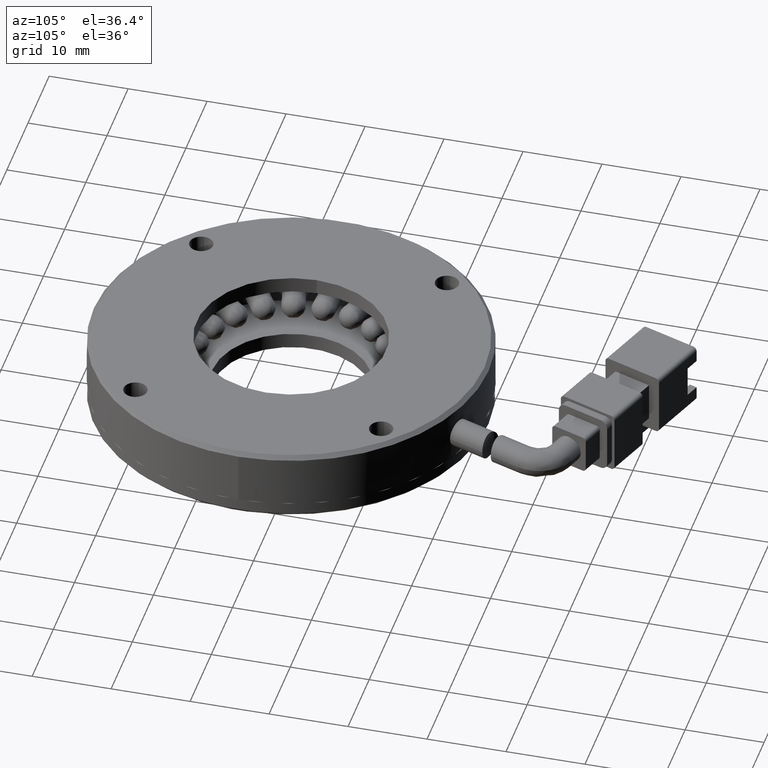
[diagram: clean part render]
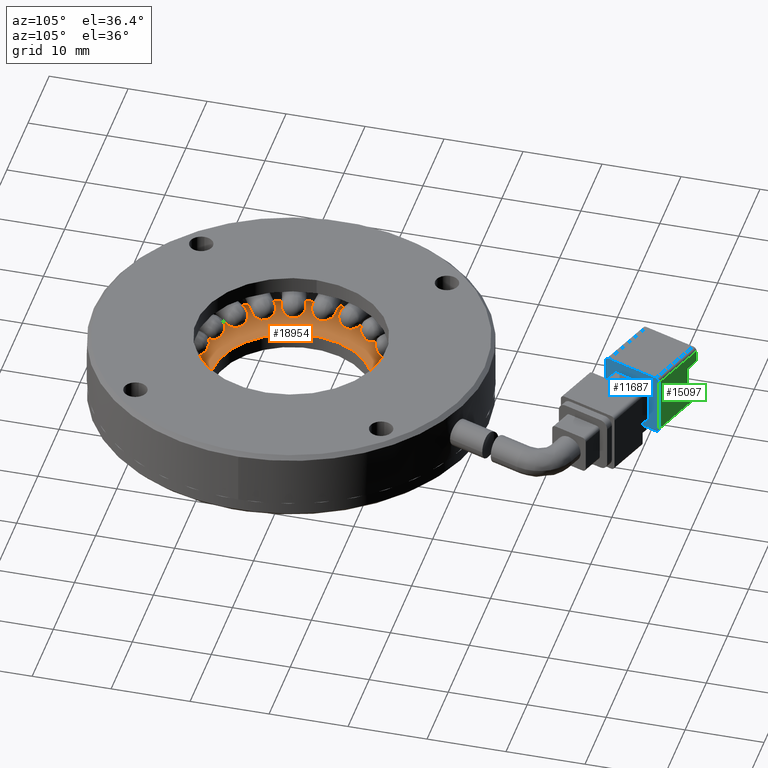
[diagram: same view with three faces highlighted in distinct colors, each labeled with its STEP entity id]
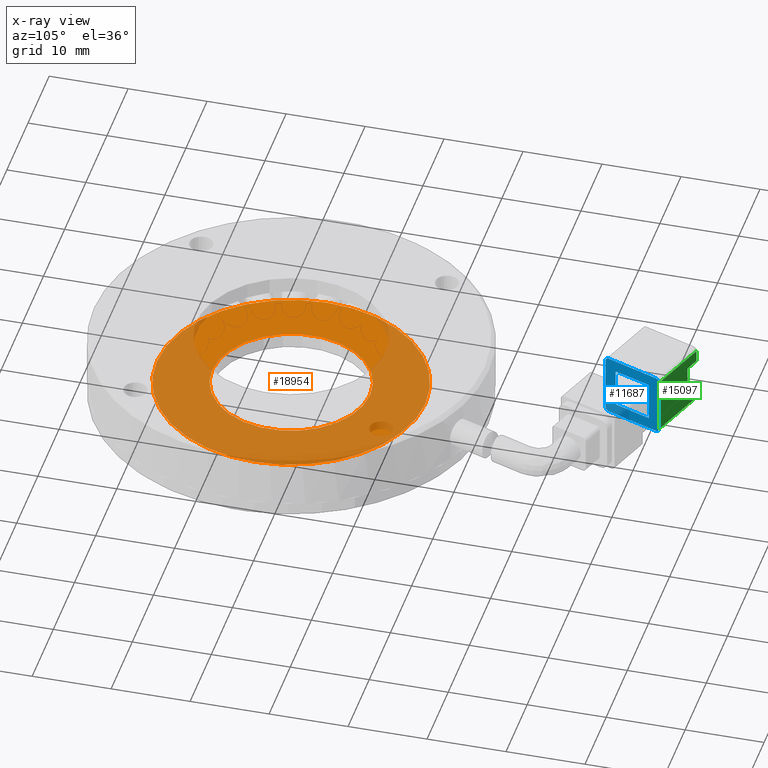
[diagram: x-ray of the same camera — body ghosted, the three highlighted faces saturated]
A machine part, auxiliary view with three faces highlighted in distinct colors.
The next image is the same camera in x-ray (body ghosted, the three faces saturated) — at least one of them is partly hidden behind the body in this view.
Their STEP definitions:

[orange] entity #18954 — the highlighted planar face has unit normal (-0, -0, -1).
#968 = VERTEX_POINT ( 'NONE', #25221 ) ;
#1215 = FACE_BOUND ( 'NONE', #2160, .T. ) ;
#1675 = VERTEX_POINT ( 'NONE', #14541 ) ;
#1801 = VERTEX_POINT ( 'NONE', #25034 ) ;
#2160 = EDGE_LOOP ( 'NONE', ( #8732, #25264 ) ) ;
#2255 = EDGE_CURVE ( 'NONE', #5007, #1801, #4013, .T. ) ;
#3247 = EDGE_LOOP ( 'NONE', ( #10003, #19771 ) ) ;
#3366 = CARTESIAN_POINT ( 'NONE',  ( -121.0083944312394000, 6.460725025464729900, -3.499999999999940500 ) ) ;
#4013 = CIRCLE ( 'NONE', #13956, 10.00000000000000000 ) ;
#4231 = AXIS2_PLACEMENT_3D ( 'NONE', #3366, #17638, #5405 ) ;
#5007 = VERTEX_POINT ( 'NONE', #23747 ) ;
#5405 = DIRECTION ( 'NONE',  ( 0.0000000000000000000, -1.000000000000000000, 0.0000000000000000000 ) ) ;
#6024 = FACE_OUTER_BOUND ( 'NONE', #3247, .T. ) ;
#6337 = EDGE_CURVE ( 'NONE', #1675, #968, #17828, .T. ) ;
#6375 = EDGE_CURVE ( 'NONE', #1801, #5007, #22610, .T. ) ;
#6946 = AXIS2_PLACEMENT_3D ( 'NONE', #21829, #9599, #23853 ) ;
#8306 = AXIS2_PLACEMENT_3D ( 'NONE', #23035, #10826, #25060 ) ;
#8732 = ORIENTED_EDGE ( 'NONE', *, *, #6375, .T. ) ;
#9599 = DIRECTION ( 'NONE',  ( -1.278084676573917400E-047, 0.0000000000000000000, -1.000000000000000000 ) ) ;
#10003 = ORIENTED_EDGE ( 'NONE', *, *, #6337, .F. ) ;
#10291 = CARTESIAN_POINT ( 'NONE',  ( -121.0083944312394000, 6.460725025464729900, -3.499999999999940500 ) ) ;
#10826 = DIRECTION ( 'NONE',  ( -1.278084676573917700E-047, -7.983674700015282600E-110, -1.000000000000000000 ) ) ;
#12361 = DIRECTION ( 'NONE',  ( 0.0000000000000000000, -1.000000000000000000, 0.0000000000000000000 ) ) ;
#13751 = AXIS2_PLACEMENT_3D ( 'NONE', #10291, #24558, #12361 ) ;
#13777 = CIRCLE ( 'NONE', #13751, 17.00000000000000000 ) ;
#13956 = AXIS2_PLACEMENT_3D ( 'NONE', #23788, #23610, #23353 ) ;
#14541 = CARTESIAN_POINT ( 'NONE',  ( -121.0083944312394000, -10.53927497453527100, -3.499999999999940500 ) ) ;
#14848 = PLANE ( 'NONE',  #8306 ) ;
#17638 = DIRECTION ( 'NONE',  ( -1.278084676573917400E-047, 0.0000000000000000000, -1.000000000000000000 ) ) ;
#17828 = CIRCLE ( 'NONE', #4231, 17.00000000000000000 ) ;
#17834 = EDGE_CURVE ( 'NONE', #968, #1675, #13777, .T. ) ;
#18954 = ADVANCED_FACE ( 'NONE', ( #6024, #1215 ), #14848, .F. ) ;
#19771 = ORIENTED_EDGE ( 'NONE', *, *, #17834, .F. ) ;
#21829 = CARTESIAN_POINT ( 'NONE',  ( -121.0083944312394000, 6.460725025464729900, -3.499999999999940500 ) ) ;
#22610 = CIRCLE ( 'NONE', #6946, 10.00000000000000000 ) ;
#23035 = CARTESIAN_POINT ( 'NONE',  ( -121.0083944312394000, 6.460725025464729900, -3.499999999999940500 ) ) ;
#23353 = DIRECTION ( 'NONE',  ( 0.0000000000000000000, -1.000000000000000000, 0.0000000000000000000 ) ) ;
#23610 = DIRECTION ( 'NONE',  ( -1.278084676573917400E-047, 0.0000000000000000000, -1.000000000000000000 ) ) ;
#23747 = CARTESIAN_POINT ( 'NONE',  ( -121.0083944312394000, 16.46072502546472900, -3.499999999999940500 ) ) ;
#23788 = CARTESIAN_POINT ( 'NONE',  ( -121.0083944312394000, 6.460725025464729900, -3.499999999999940500 ) ) ;
#23853 = DIRECTION ( 'NONE',  ( 0.0000000000000000000, -1.000000000000000000, 0.0000000000000000000 ) ) ;
#24558 = DIRECTION ( 'NONE',  ( -1.278084676573917400E-047, 0.0000000000000000000, -1.000000000000000000 ) ) ;
#25034 = CARTESIAN_POINT ( 'NONE',  ( -121.0083944312394000, -3.539274974535270500, -3.499999999999940500 ) ) ;
#25060 = DIRECTION ( 'NONE',  ( -1.278084676573917700E-047, 1.000000000000000000, 1.633500440493055000E-094 ) ) ;
#25221 = CARTESIAN_POINT ( 'NONE',  ( -121.0083944312394000, 23.46072502546472900, -3.499999999999940500 ) ) ;
#25264 = ORIENTED_EDGE ( 'NONE', *, *, #2255, .T. ) ;

[blue] entity #11687 — the highlighted planar face has unit normal (0.9397, -0.342, -0).
#506 = EDGE_CURVE ( 'NONE', #12039, #4338, #18950, .T. ) ;
#523 = AXIS2_PLACEMENT_3D ( 'NONE', #2427, #16722, #4471 ) ;
#531 = EDGE_CURVE ( 'NONE', #4338, #12506, #739, .T. ) ;
#681 = VERTEX_POINT ( 'NONE', #16745 ) ;
#739 = LINE ( 'NONE', #9962, #10946 ) ;
#866 = CARTESIAN_POINT ( 'NONE',  ( -124.0385810184299200, 52.22573720344327300, 3.000000000000072800 ) ) ;
#1145 = CARTESIAN_POINT ( 'NONE',  ( -126.2617119500467600, 46.11773516833486000, 2.000000000000079900 ) ) ;
#1752 = VERTEX_POINT ( 'NONE', #18805 ) ;
#1852 = VECTOR ( 'NONE', #25768, 999.9999999999998900 ) ;
#2427 = CARTESIAN_POINT ( 'NONE',  ( -124.2095910900927400, 51.75589089305033500, -3.999999999999917800 ) ) ;
#3074 = FACE_BOUND ( 'NONE', #5725, .T. ) ;
#3317 = VECTOR ( 'NONE', #15859, 999.9999999999998900 ) ;
#3508 = DIRECTION ( 'NONE',  ( -2.333578247978733300E-016, 2.116735384756109300E-018, -1.000000000000000000 ) ) ;
#3514 = VECTOR ( 'NONE', #21904, 999.9999999999998900 ) ;
#3571 = CARTESIAN_POINT ( 'NONE',  ( -126.2617119500467900, 46.11773516833485300, -2.999999999999921000 ) ) ;
#3788 = CARTESIAN_POINT ( 'NONE',  ( -126.6037320933724400, 45.17804254754897600, 3.500000000000080400 ) ) ;
#3961 = LINE ( 'NONE', #24023, #8757 ) ;
#4309 = ORIENTED_EDGE ( 'NONE', *, *, #5948, .T. ) ;
#4338 = VERTEX_POINT ( 'NONE', #6745 ) ;
#4353 = DIRECTION ( 'NONE',  ( 0.9396926207859082100, -0.3420201433256692100, -2.200085921048892100E-016 ) ) ;
#4424 = DIRECTION ( 'NONE',  ( 0.3420201433256689900, 0.9396926207859084300, -7.782399606232325600E-017 ) ) ;
#4453 = VERTEX_POINT ( 'NONE', #17304 ) ;
#4471 = DIRECTION ( 'NONE',  ( 0.0000000000000000000, 0.0000000000000000000, 1.000000000000000000 ) ) ;
#4644 = DIRECTION ( 'NONE',  ( 0.3420201433256689900, 0.9396926207859084300, -7.782399606232325600E-017 ) ) ;
#4698 = CARTESIAN_POINT ( 'NONE',  ( -124.5516112334184100, 50.81619827226441500, -2.999999999999930700 ) ) ;
#5013 = EDGE_CURVE ( 'NONE', #12506, #18815, #7920, .T. ) ;
#5233 = VERTEX_POINT ( 'NONE', #22431 ) ;
#5725 = EDGE_LOOP ( 'NONE', ( #16333, #24750, #6447, #8915 ) ) ;
#5948 = EDGE_CURVE ( 'NONE', #10672, #12713, #19157, .T. ) ;
#6037 = CIRCLE ( 'NONE', #9077, 0.5000000000000022200 ) ;
#6447 = ORIENTED_EDGE ( 'NONE', *, *, #18095, .T. ) ;
#6745 = CARTESIAN_POINT ( 'NONE',  ( -124.5516112334184000, 50.81619827226444400, 2.000000000000075500 ) ) ;
#6887 = DIRECTION ( 'NONE',  ( 2.333578247978733300E-016, -2.116735384756109300E-018, 1.000000000000000000 ) ) ;
#7014 = EDGE_CURVE ( 'NONE', #13931, #5233, #9490, .T. ) ;
#7085 = CARTESIAN_POINT ( 'NONE',  ( -126.7747421650352600, 44.70819623715601700, 3.000000000000061700 ) ) ;
#7154 = AXIS2_PLACEMENT_3D ( 'NONE', #10181, #24444, #12237 ) ;
#7163 = CARTESIAN_POINT ( 'NONE',  ( -124.2095910900927400, 51.75589089305033500, -4.499999999999928100 ) ) ;
#7348 = EDGE_CURVE ( 'NONE', #1752, #13153, #18075, .T. ) ;
#7696 = CARTESIAN_POINT ( 'NONE',  ( -124.2095910900927300, 51.75589089305032800, -4.499999999999919200 ) ) ;
#7920 = LINE ( 'NONE', #13616, #1852 ) ;
#7934 = CARTESIAN_POINT ( 'NONE',  ( -124.2095910900927300, 51.75589089305032800, -3.999999999999934300 ) ) ;
#8035 = VECTOR ( 'NONE', #6887, 1000.000000000000000 ) ;
#8217 = ORIENTED_EDGE ( 'NONE', *, *, #7014, .T. ) ;
#8280 = EDGE_LOOP ( 'NONE', ( #13235, #12292, #9592, #25121, #8217, #23008, #18581, #26416, #25868, #4309 ) ) ;
#8757 = VECTOR ( 'NONE', #9870, 1000.000000000000000 ) ;
#8915 = ORIENTED_EDGE ( 'NONE', *, *, #506, .T. ) ;
#9077 = AXIS2_PLACEMENT_3D ( 'NONE', #10342, #24607, #12415 ) ;
#9490 = CIRCLE ( 'NONE', #7154, 0.5000000000000017800 ) ;
#9592 = ORIENTED_EDGE ( 'NONE', *, *, #7348, .F. ) ;
#9870 = DIRECTION ( 'NONE',  ( 2.333578247978733300E-016, -2.116735384756109300E-018, 1.000000000000000000 ) ) ;
#9962 = CARTESIAN_POINT ( 'NONE',  ( -124.5516112334183700, 50.81619827226445800, -3.999999999999934300 ) ) ;
#9981 = DIRECTION ( 'NONE',  ( -0.3420201433256689900, -0.9396926207859084300, 7.782399606232325600E-017 ) ) ;
#10021 = VERTEX_POINT ( 'NONE', #19454 ) ;
#10181 = CARTESIAN_POINT ( 'NONE',  ( -124.2095910900927600, 51.75589089305034900, 3.000000000000083500 ) ) ;
#10342 = CARTESIAN_POINT ( 'NONE',  ( -126.6037320933724400, 45.17804254754897600, -3.999999999999934300 ) ) ;
#10672 = VERTEX_POINT ( 'NONE', #13799 ) ;
#10946 = VECTOR ( 'NONE', #14086, 1000.000000000000000 ) ;
#11687 = ADVANCED_FACE ( 'NONE', ( #3074, #18725 ), #11947, .T. ) ;
#11947 = PLANE ( 'NONE',  #13278 ) ;
#12039 = VERTEX_POINT ( 'NONE', #1145 ) ;
#12195 = EDGE_CURVE ( 'NONE', #1752, #13931, #3961, .T. ) ;
#12237 = DIRECTION ( 'NONE',  ( 0.0000000000000000000, 0.0000000000000000000, 1.000000000000000000 ) ) ;
#12292 = ORIENTED_EDGE ( 'NONE', *, *, #14992, .T. ) ;
#12328 = LINE ( 'NONE', #14608, #17756 ) ;
#12415 = DIRECTION ( 'NONE',  ( 0.0000000000000000000, 0.0000000000000000000, 1.000000000000000000 ) ) ;
#12506 = VERTEX_POINT ( 'NONE', #4698 ) ;
#12713 = VERTEX_POINT ( 'NONE', #17902 ) ;
#12754 = CARTESIAN_POINT ( 'NONE',  ( -124.2095910900927300, 51.75589089305032800, -4.499999999999936100 ) ) ;
#12927 = VECTOR ( 'NONE', #26125, 999.9999999999998900 ) ;
#13153 = VERTEX_POINT ( 'NONE', #7163 ) ;
#13235 = ORIENTED_EDGE ( 'NONE', *, *, #15512, .T. ) ;
#13278 = AXIS2_PLACEMENT_3D ( 'NONE', #7934, #22221, #9981 ) ;
#13575 = LINE ( 'NONE', #3788, #12927 ) ;
#13616 = CARTESIAN_POINT ( 'NONE',  ( -124.2095910900927300, 51.75589089305032800, -2.999999999999935200 ) ) ;
#13799 = CARTESIAN_POINT ( 'NONE',  ( -126.6037320933724400, 45.17804254754896900, -4.499999999999918300 ) ) ;
#13931 = VERTEX_POINT ( 'NONE', #866 ) ;
#13994 = CARTESIAN_POINT ( 'NONE',  ( -124.2095910900927200, 51.75589089305032800, 2.000000000000079900 ) ) ;
#14086 = DIRECTION ( 'NONE',  ( -2.333578247978733300E-016, 2.116735384756109300E-018, -1.000000000000000000 ) ) ;
#14608 = CARTESIAN_POINT ( 'NONE',  ( -124.2095910900927300, 51.75589089305032800, -4.499999999999936100 ) ) ;
#14638 = LINE ( 'NONE', #12754, #20068 ) ;
#14992 = EDGE_CURVE ( 'NONE', #10021, #13153, #14638, .T. ) ;
#15512 = EDGE_CURVE ( 'NONE', #12713, #10021, #12328, .T. ) ;
#15717 = VERTEX_POINT ( 'NONE', #7085 ) ;
#15859 = DIRECTION ( 'NONE',  ( 0.3420201433256689900, 0.9396926207859084300, -7.782399606232325600E-017 ) ) ;
#15950 = EDGE_CURVE ( 'NONE', #5233, #4453, #13575, .T. ) ;
#16333 = ORIENTED_EDGE ( 'NONE', *, *, #531, .T. ) ;
#16595 = CARTESIAN_POINT ( 'NONE',  ( -126.6037320933724400, 45.17804254754896900, 3.000000000000061700 ) ) ;
#16722 = DIRECTION ( 'NONE',  ( -0.9396926207859082100, 0.3420201433256692100, 2.200085921048892100E-016 ) ) ;
#16745 = CARTESIAN_POINT ( 'NONE',  ( -126.7747421650352900, 44.70819623715601700, -3.999999999999926300 ) ) ;
#17156 = LINE ( 'NONE', #17776, #22567 ) ;
#17272 = EDGE_CURVE ( 'NONE', #4453, #15717, #22972, .T. ) ;
#17304 = CARTESIAN_POINT ( 'NONE',  ( -126.6037320933724400, 45.17804254754899100, 3.500000000000080400 ) ) ;
#17756 = VECTOR ( 'NONE', #4424, 999.9999999999998900 ) ;
#17776 = CARTESIAN_POINT ( 'NONE',  ( -126.7747421650352400, 44.70819623715603100, -3.999999999999933400 ) ) ;
#17902 = CARTESIAN_POINT ( 'NONE',  ( -125.7059292171425500, 47.64473567711195300, -4.499999999999927200 ) ) ;
#18075 = CIRCLE ( 'NONE', #523, 0.5000000000000017800 ) ;
#18095 = EDGE_CURVE ( 'NONE', #18815, #12039, #24296, .T. ) ;
#18581 = ORIENTED_EDGE ( 'NONE', *, *, #17272, .T. ) ;
#18634 = DIRECTION ( 'NONE',  ( 0.0000000000000000000, 0.0000000000000000000, 1.000000000000000000 ) ) ;
#18725 = FACE_OUTER_BOUND ( 'NONE', #8280, .T. ) ;
#18805 = CARTESIAN_POINT ( 'NONE',  ( -124.0385810184299100, 52.22573720344327300, -3.999999999999917800 ) ) ;
#18815 = VERTEX_POINT ( 'NONE', #3571 ) ;
#18950 = LINE ( 'NONE', #13994, #3317 ) ;
#19157 = LINE ( 'NONE', #7696, #3514 ) ;
#19182 = EDGE_CURVE ( 'NONE', #15717, #681, #17156, .T. ) ;
#19454 = CARTESIAN_POINT ( 'NONE',  ( -125.1073939663226200, 49.28919776348730200, -4.499999999999927200 ) ) ;
#20068 = VECTOR ( 'NONE', #4644, 999.9999999999998900 ) ;
#21904 = DIRECTION ( 'NONE',  ( 0.3420201433256689900, 0.9396926207859084300, -7.782399606232325600E-017 ) ) ;
#22221 = DIRECTION ( 'NONE',  ( 0.9396926207859084300, -0.3420201433256689900, -2.200085921048892600E-016 ) ) ;
#22431 = CARTESIAN_POINT ( 'NONE',  ( -124.2095910900927600, 51.75589089305034900, 3.500000000000080400 ) ) ;
#22567 = VECTOR ( 'NONE', #3508, 1000.000000000000000 ) ;
#22972 = CIRCLE ( 'NONE', #23937, 0.5000000000000013300 ) ;
#23008 = ORIENTED_EDGE ( 'NONE', *, *, #15950, .T. ) ;
#23937 = AXIS2_PLACEMENT_3D ( 'NONE', #16595, #4353, #18634 ) ;
#24023 = CARTESIAN_POINT ( 'NONE',  ( -124.0385810184299100, 52.22573720344325900, -3.999999999999934300 ) ) ;
#24296 = LINE ( 'NONE', #25063, #8035 ) ;
#24444 = DIRECTION ( 'NONE',  ( 0.9396926207859082100, -0.3420201433256692100, -2.200085921048892100E-016 ) ) ;
#24607 = DIRECTION ( 'NONE',  ( -0.9396926207859082100, 0.3420201433256692100, 2.200085921048892100E-016 ) ) ;
#24750 = ORIENTED_EDGE ( 'NONE', *, *, #5013, .T. ) ;
#24769 = EDGE_CURVE ( 'NONE', #10672, #681, #6037, .T. ) ;
#25063 = CARTESIAN_POINT ( 'NONE',  ( -126.2617119500467600, 46.11773516833484600, -3.999999999999934300 ) ) ;
#25121 = ORIENTED_EDGE ( 'NONE', *, *, #12195, .T. ) ;
#25768 = DIRECTION ( 'NONE',  ( -0.3420201433256689900, -0.9396926207859084300, 7.782399606232325600E-017 ) ) ;
#25868 = ORIENTED_EDGE ( 'NONE', *, *, #24769, .F. ) ;
#26125 = DIRECTION ( 'NONE',  ( -0.3420201433256692100, -0.9396926207859083200, 2.903288705414649500E-017 ) ) ;
#26416 = ORIENTED_EDGE ( 'NONE', *, *, #19182, .T. ) ;

[green] entity #15097 — the highlighted planar face has unit normal (-0.342, -0.9397, 0).
#62 = CARTESIAN_POINT ( 'NONE',  ( -131.5561219847171800, 54.96189835004862800, -2.499999999999922300 ) ) ;
#107 = DIRECTION ( 'NONE',  ( 2.333578247978733300E-016, -2.116735384756109300E-018, 1.000000000000000000 ) ) ;
#113 = VECTOR ( 'NONE', #21931, 999.9999999999998900 ) ;
#542 = CARTESIAN_POINT ( 'NONE',  ( -131.5561219847171800, 54.96189835004862800, -3.999999999999916100 ) ) ;
#866 = CARTESIAN_POINT ( 'NONE',  ( -124.0385810184299200, 52.22573720344327300, 3.000000000000072800 ) ) ;
#1298 = VECTOR ( 'NONE', #8031, 1000.000000000000000 ) ;
#1752 = VERTEX_POINT ( 'NONE', #18805 ) ;
#1911 = ORIENTED_EDGE ( 'NONE', *, *, #14844, .T. ) ;
#3163 = EDGE_CURVE ( 'NONE', #23007, #12303, #16404, .T. ) ;
#3791 = EDGE_CURVE ( 'NONE', #12303, #9078, #10596, .T. ) ;
#3961 = LINE ( 'NONE', #24023, #8757 ) ;
#4177 = AXIS2_PLACEMENT_3D ( 'NONE', #17224, #4974, #19272 ) ;
#4639 = DIRECTION ( 'NONE',  ( 0.9396926207859083200, -0.3420201433256692700, -1.110223024625156500E-016 ) ) ;
#4974 = DIRECTION ( 'NONE',  ( -0.3420201433256692700, -0.9396926207859083200, 1.529417067667757400E-016 ) ) ;
#5736 = VECTOR ( 'NONE', #4639, 999.9999999999998900 ) ;
#6434 = VECTOR ( 'NONE', #7857, 999.9999999999998900 ) ;
#7045 = ORIENTED_EDGE ( 'NONE', *, *, #3791, .F. ) ;
#7141 = CARTESIAN_POINT ( 'NONE',  ( -131.5561219847171800, 54.96189835004862800, -3.999999999999916100 ) ) ;
#7827 = ORIENTED_EDGE ( 'NONE', *, *, #3163, .F. ) ;
#7857 = DIRECTION ( 'NONE',  ( -0.9396926207859083200, 0.3420201433256692700, 2.200085921048892400E-016 ) ) ;
#8031 = DIRECTION ( 'NONE',  ( -1.566359828355322200E-016, -1.057463294585659500E-016, -1.000000000000000000 ) ) ;
#8257 = EDGE_CURVE ( 'NONE', #18036, #14520, #9984, .T. ) ;
#8757 = VECTOR ( 'NONE', #9870, 1000.000000000000000 ) ;
#9019 = PLANE ( 'NONE',  #4177 ) ;
#9078 = VERTEX_POINT ( 'NONE', #25362 ) ;
#9214 = DIRECTION ( 'NONE',  ( -1.566359828355322200E-016, -1.057463294585659500E-016, -1.000000000000000000 ) ) ;
#9300 = ORIENTED_EDGE ( 'NONE', *, *, #26123, .F. ) ;
#9593 = LINE ( 'NONE', #11959, #1298 ) ;
#9870 = DIRECTION ( 'NONE',  ( 2.333578247978733300E-016, -2.116735384756109300E-018, 1.000000000000000000 ) ) ;
#9984 = LINE ( 'NONE', #15682, #20201 ) ;
#10596 = LINE ( 'NONE', #7141, #15389 ) ;
#11156 = LINE ( 'NONE', #542, #5736 ) ;
#11959 = CARTESIAN_POINT ( 'NONE',  ( -129.7531995496019900, 54.30568824897596200, -3.999999999999917000 ) ) ;
#12195 = EDGE_CURVE ( 'NONE', #1752, #13931, #3961, .T. ) ;
#12303 = VERTEX_POINT ( 'NONE', #62 ) ;
#12958 = ORIENTED_EDGE ( 'NONE', *, *, #17130, .F. ) ;
#13201 = CARTESIAN_POINT ( 'NONE',  ( -129.7531995496019900, 54.30568824897596200, -2.499999999999921400 ) ) ;
#13248 = CARTESIAN_POINT ( 'NONE',  ( -129.7531995496019600, 54.30568824897596200, 1.500000000000083000 ) ) ;
#13660 = VERTEX_POINT ( 'NONE', #15258 ) ;
#13931 = VERTEX_POINT ( 'NONE', #866 ) ;
#14397 = CARTESIAN_POINT ( 'NONE',  ( -131.5561219847171800, 54.96189835004862800, -3.999999999999916100 ) ) ;
#14520 = VERTEX_POINT ( 'NONE', #13248 ) ;
#14622 = ORIENTED_EDGE ( 'NONE', *, *, #8257, .F. ) ;
#14844 = EDGE_CURVE ( 'NONE', #18036, #13660, #19317, .T. ) ;
#14933 = FACE_OUTER_BOUND ( 'NONE', #25095, .T. ) ;
#15097 = ADVANCED_FACE ( 'NONE', ( #14933 ), #9019, .F. ) ;
#15258 = CARTESIAN_POINT ( 'NONE',  ( -131.5561219847171800, 54.96189835004863500, 3.000000000000074600 ) ) ;
#15389 = VECTOR ( 'NONE', #9214, 1000.000000000000000 ) ;
#15682 = CARTESIAN_POINT ( 'NONE',  ( -131.5561219847171800, 54.96189835004862800, 1.500000000000083500 ) ) ;
#15905 = CARTESIAN_POINT ( 'NONE',  ( -131.5561219847171800, 54.96189835004864900, 3.000000000000065300 ) ) ;
#16404 = LINE ( 'NONE', #21754, #113 ) ;
#17130 = EDGE_CURVE ( 'NONE', #14520, #23007, #9593, .T. ) ;
#17224 = CARTESIAN_POINT ( 'NONE',  ( -131.5561219847171800, 54.96189835004862800, -3.999999999999916100 ) ) ;
#17725 = DIRECTION ( 'NONE',  ( 0.9396926207859083200, -0.3420201433256692700, -1.110223024625156500E-016 ) ) ;
#18036 = VERTEX_POINT ( 'NONE', #20988 ) ;
#18805 = CARTESIAN_POINT ( 'NONE',  ( -124.0385810184299100, 52.22573720344327300, -3.999999999999917800 ) ) ;
#19171 = ORIENTED_EDGE ( 'NONE', *, *, #20905, .F. ) ;
#19272 = DIRECTION ( 'NONE',  ( -1.566359828355322200E-016, -1.057463294585659500E-016, -1.000000000000000000 ) ) ;
#19317 = LINE ( 'NONE', #14397, #24705 ) ;
#20201 = VECTOR ( 'NONE', #17725, 999.9999999999998900 ) ;
#20905 = EDGE_CURVE ( 'NONE', #13931, #13660, #22715, .T. ) ;
#20988 = CARTESIAN_POINT ( 'NONE',  ( -131.5561219847171800, 54.96189835004862100, 1.500000000000082600 ) ) ;
#21754 = CARTESIAN_POINT ( 'NONE',  ( -131.5561219847171800, 54.96189835004862800, -2.499999999999922300 ) ) ;
#21931 = DIRECTION ( 'NONE',  ( -0.9396926207859083200, 0.3420201433256692700, 1.110223024625156500E-016 ) ) ;
#22370 = ORIENTED_EDGE ( 'NONE', *, *, #12195, .F. ) ;
#22715 = LINE ( 'NONE', #15905, #6434 ) ;
#23007 = VERTEX_POINT ( 'NONE', #13201 ) ;
#24023 = CARTESIAN_POINT ( 'NONE',  ( -124.0385810184299100, 52.22573720344325900, -3.999999999999934300 ) ) ;
#24705 = VECTOR ( 'NONE', #107, 1000.000000000000000 ) ;
#25095 = EDGE_LOOP ( 'NONE', ( #7827, #12958, #14622, #1911, #19171, #22370, #9300, #7045 ) ) ;
#25362 = CARTESIAN_POINT ( 'NONE',  ( -131.5561219847171800, 54.96189835004862800, -3.999999999999916100 ) ) ;
#26123 = EDGE_CURVE ( 'NONE', #9078, #1752, #11156, .T. ) ;